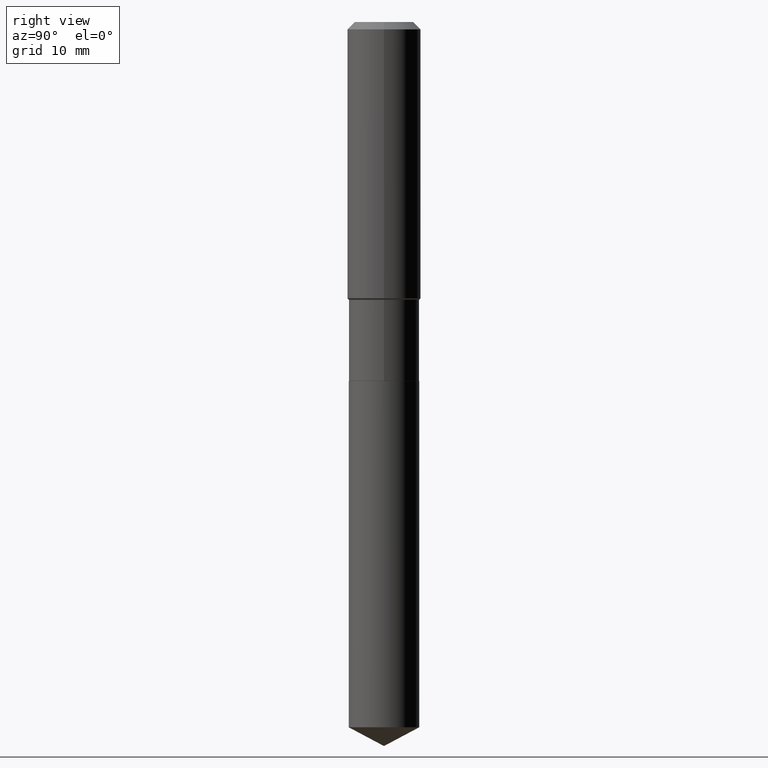
[diagram: clean part render]
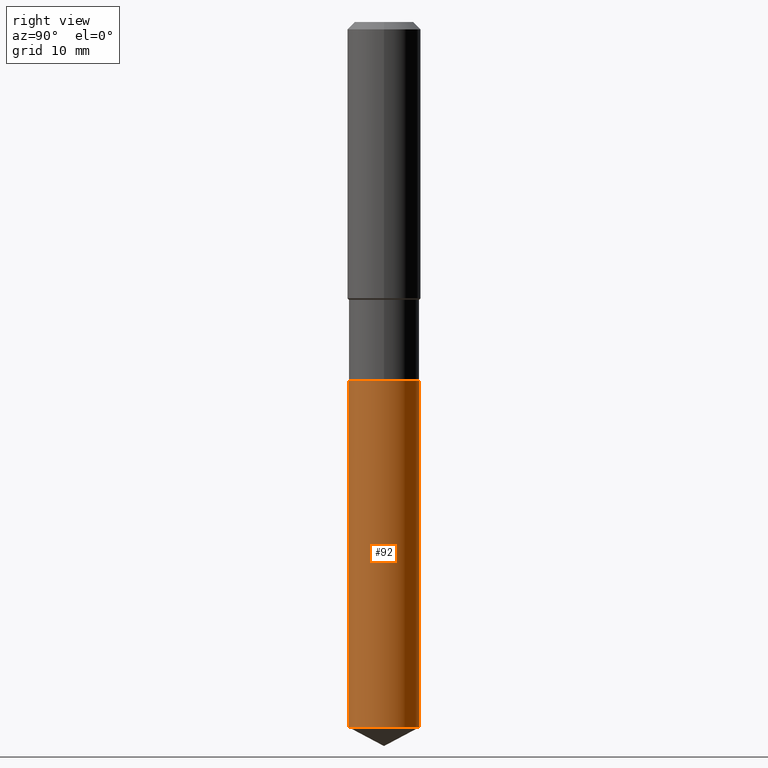
[diagram: same view with one face highlighted and labeled with its STEP entity id]
A machine part, right view. The second image highlights one B-rep face of the part: STEP entity #92.
In plain terms, the highlighted cylindrical surface (edge-blend (fillet) strip) has radius 5.7506 mm, axis along (-0, 0, 1).
Its self-contained STEP definition (entity closure, byte-faithful):
#1 = CARTESIAN_POINT ( 'NONE',  ( 1.608668753760977191E-15, 0.2263999999999919133, -2.303200000000000358 ) ) ;
#7 = CARTESIAN_POINT ( 'NONE',  ( -1.580942750228060187E-15, -0.2264000000000157831, -4.525320984671840741 ) ) ;
#30 = CARTESIAN_POINT ( 'NONE',  ( 1.106648869600578829E-28, -1.580013479017961313E-14, -4.525320984671841629 ) ) ;
#32 = DIRECTION ( 'NONE',  ( -6.982962677686265922E-15, -1.000000000000000000, 2.413293280622141084E-15 ) ) ;
#49 = ORIENTED_EDGE ( 'NONE', *, *, #101, .T. ) ;
#51 = CARTESIAN_POINT ( 'NONE',  ( 1.608668753760976994E-15, 0.2263999999999841972, -4.525320984671841629 ) ) ;
#52 = EDGE_LOOP ( 'NONE', ( #49, #87, #318, #220 ) ) ;
#77 = DIRECTION ( 'NONE',  ( -2.445449630818674093E-29, 3.491508799059314165E-15, 1.000000000000000000 ) ) ;
#87 = ORIENTED_EDGE ( 'NONE', *, *, #331, .T. ) ;
#92 = ADVANCED_FACE ( 'NONE', ( #280 ), #337, .T. ) ;
#94 = CIRCLE ( 'NONE', #340, 0.2263999999999999624 ) ;
#101 = EDGE_CURVE ( 'NONE', #322, #320, #104, .T. ) ;
#104 = CIRCLE ( 'NONE', #415, 0.2263999999999999624 ) ;
#112 = CARTESIAN_POINT ( 'NONE',  ( -1.580942750228114224E-15, -0.2264000000000080115, -2.303199999999998582 ) ) ;
#126 = VECTOR ( 'NONE', #136, 39.37007874015748143 ) ;
#136 = DIRECTION ( 'NONE',  ( -2.445449630818674093E-29, 3.491508799059314559E-15, 1.000000000000000000 ) ) ;
#145 = DIRECTION ( 'NONE',  ( -2.445449630818674093E-29, 3.491508799059314165E-15, 1.000000000000000000 ) ) ;
#147 = CARTESIAN_POINT ( 'NONE',  ( -1.580942750228114224E-15, -0.2264000000000080115, -2.303199999999998582 ) ) ;
#149 = DIRECTION ( 'NONE',  ( -2.445449630818674093E-29, 3.491508799059314559E-15, 1.000000000000000000 ) ) ;
#158 = VERTEX_POINT ( 'NONE', #112 ) ;
#220 = ORIENTED_EDGE ( 'NONE', *, *, #429, .F. ) ;
#224 = CARTESIAN_POINT ( 'NONE',  ( 1.608668753760922760E-15, 0.2263999999999919410, -2.303200000000000358 ) ) ;
#225 = DIRECTION ( 'NONE',  ( -6.982962677686265922E-15, -1.000000000000000000, 3.619939920933211627E-15 ) ) ;
#232 = DIRECTION ( 'NONE',  ( -2.445449630818674093E-29, 3.491508799059314165E-15, 1.000000000000000000 ) ) ;
#238 = AXIS2_PLACEMENT_3D ( 'NONE', #272, #77, #225 ) ;
#254 = VERTEX_POINT ( 'NONE', #1 ) ;
#258 = VECTOR ( 'NONE', #149, 39.37007874015748143 ) ;
#265 = LINE ( 'NONE', #147, #126 ) ;
#272 = CARTESIAN_POINT ( 'NONE',  ( 5.632403754405604963E-29, -8.041579819623531161E-15, -2.303199999999999470 ) ) ;
#280 = FACE_OUTER_BOUND ( 'NONE', #52, .T. ) ;
#303 = CARTESIAN_POINT ( 'NONE',  ( 5.632403754405604963E-29, -8.041579819623531161E-15, -2.303199999999999470 ) ) ;
#318 = ORIENTED_EDGE ( 'NONE', *, *, #436, .F. ) ;
#320 = VERTEX_POINT ( 'NONE', #51 ) ;
#322 = VERTEX_POINT ( 'NONE', #7 ) ;
#331 = EDGE_CURVE ( 'NONE', #320, #254, #463, .T. ) ;
#337 = CYLINDRICAL_SURFACE ( 'NONE', #238, 0.2263999999999999624 ) ;
#340 = AXIS2_PLACEMENT_3D ( 'NONE', #303, #145, #442 ) ;
#415 = AXIS2_PLACEMENT_3D ( 'NONE', #30, #232, #32 ) ;
#429 = EDGE_CURVE ( 'NONE', #322, #158, #265, .T. ) ;
#436 = EDGE_CURVE ( 'NONE', #158, #254, #94, .T. ) ;
#442 = DIRECTION ( 'NONE',  ( -6.982962677686265922E-15, -1.000000000000000000, 3.619939920933211627E-15 ) ) ;
#463 = LINE ( 'NONE', #224, #258 ) ;